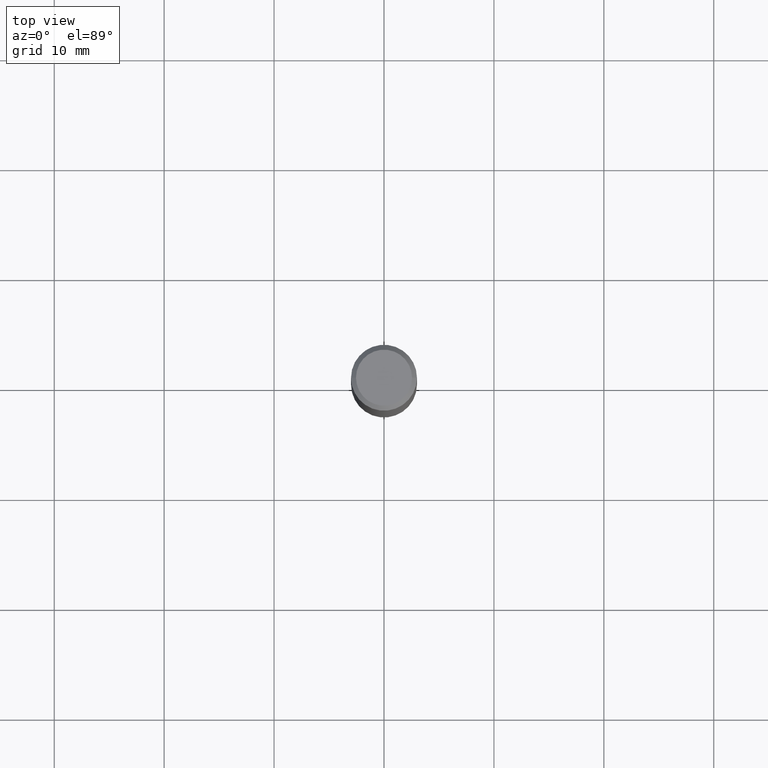
[diagram: clean part render]
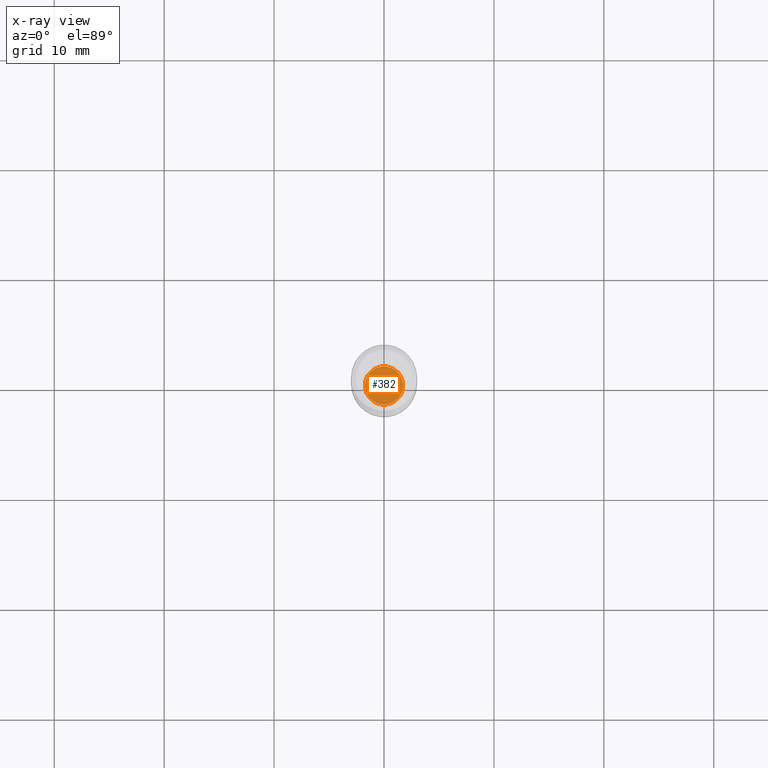
[diagram: x-ray — body ghosted, one internal face saturated and labeled with its STEP entity id]
A machine part, top view, then the same camera in x-ray: the body is ghosted and one INTERNAL B-rep face — a face not visible from any outside direction — is saturated and labeled: STEP entity #382.
In plain terms, the highlighted planar face has unit normal (-0, 0, 1).
Its self-contained STEP definition (entity closure, byte-faithful):
#5 = CARTESIAN_POINT ( 'NONE',  ( 0.06840000000000000246, -6.182016858555670618E-15, -1.633799999999999919 ) ) ;
#17 = AXIS2_PLACEMENT_3D ( 'NONE', #141, #171, #293 ) ;
#33 = EDGE_CURVE ( 'NONE', #35, #94, #116, .T. ) ;
#35 = VERTEX_POINT ( 'NONE', #459 ) ;
#64 = DIRECTION ( 'NONE',  ( -2.445468806185136597E-29, 3.491481338843145583E-15, 1.000000000000000000 ) ) ;
#94 = VERTEX_POINT ( 'NONE', #5 ) ;
#98 = CIRCLE ( 'NONE', #395, 0.06840000000000000246 ) ;
#116 = CIRCLE ( 'NONE', #256, 0.06840000000000000246 ) ;
#137 = CARTESIAN_POINT ( 'NONE',  ( 3.995406935545275904E-29, -5.704382211401930676E-15, -1.633799999999999919 ) ) ;
#139 = EDGE_CURVE ( 'NONE', #94, #35, #98, .T. ) ;
#141 = CARTESIAN_POINT ( 'NONE',  ( 3.995406935545275904E-29, -5.704382211401930676E-15, -1.633799999999999919 ) ) ;
#171 = DIRECTION ( 'NONE',  ( -2.438088387897960049E-29, 3.491481338843145188E-15, 1.000000000000000000 ) ) ;
#176 = EDGE_LOOP ( 'NONE', ( #240, #431 ) ) ;
#187 = DIRECTION ( 'NONE',  ( -2.445468806185136597E-29, 3.491481338843145583E-15, 1.000000000000000000 ) ) ;
#205 = DIRECTION ( 'NONE',  ( 1.000000000000000000, -6.982962677686258822E-15, 0.000000000000000000 ) ) ;
#240 = ORIENTED_EDGE ( 'NONE', *, *, #139, .F. ) ;
#256 = AXIS2_PLACEMENT_3D ( 'NONE', #348, #187, #461 ) ;
#293 = DIRECTION ( 'NONE',  ( 1.000000000000000000, -6.982962677686265922E-15, 4.876176775795935793E-29 ) ) ;
#330 = PLANE ( 'NONE',  #17 ) ;
#348 = CARTESIAN_POINT ( 'NONE',  ( 3.995406935545275904E-29, -5.704382211401930676E-15, -1.633799999999999919 ) ) ;
#382 = ADVANCED_FACE ( 'NONE', ( #488 ), #330, .F. ) ;
#395 = AXIS2_PLACEMENT_3D ( 'NONE', #137, #64, #205 ) ;
#431 = ORIENTED_EDGE ( 'NONE', *, *, #33, .F. ) ;
#459 = CARTESIAN_POINT ( 'NONE',  ( -0.06840000000000000246, -5.215721752967910831E-15, -1.633799999999999919 ) ) ;
#461 = DIRECTION ( 'NONE',  ( 1.000000000000000000, -6.982962677686258822E-15, 0.000000000000000000 ) ) ;
#488 = FACE_OUTER_BOUND ( 'NONE', #176, .T. ) ;